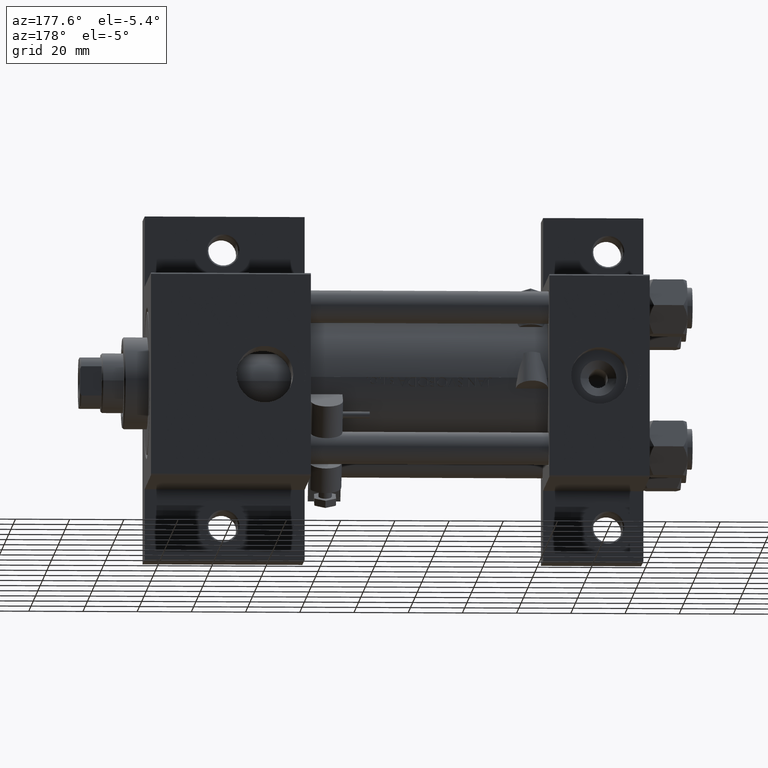
[diagram: clean part render]
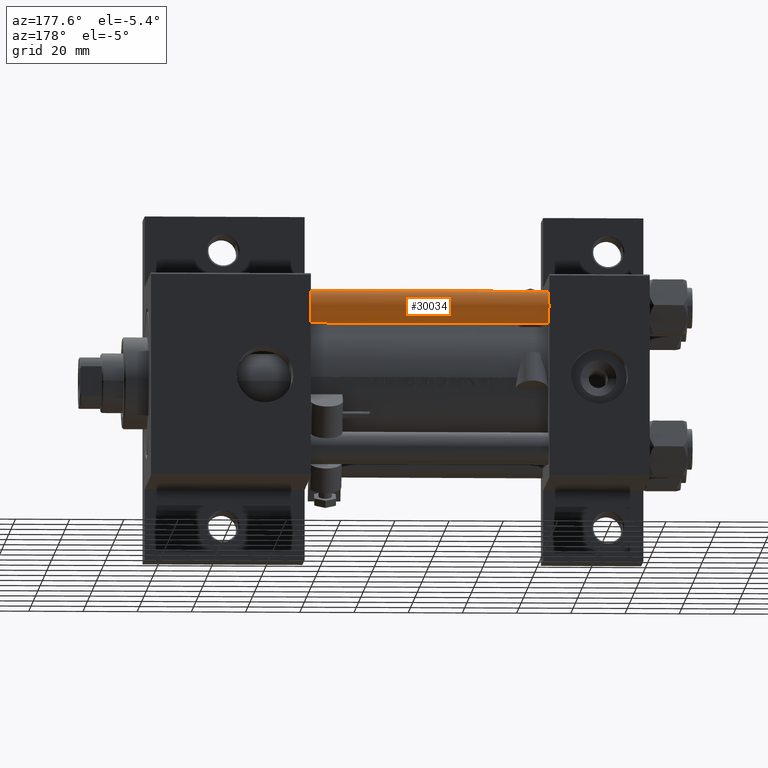
[diagram: same view with one face highlighted and labeled with its STEP entity id]
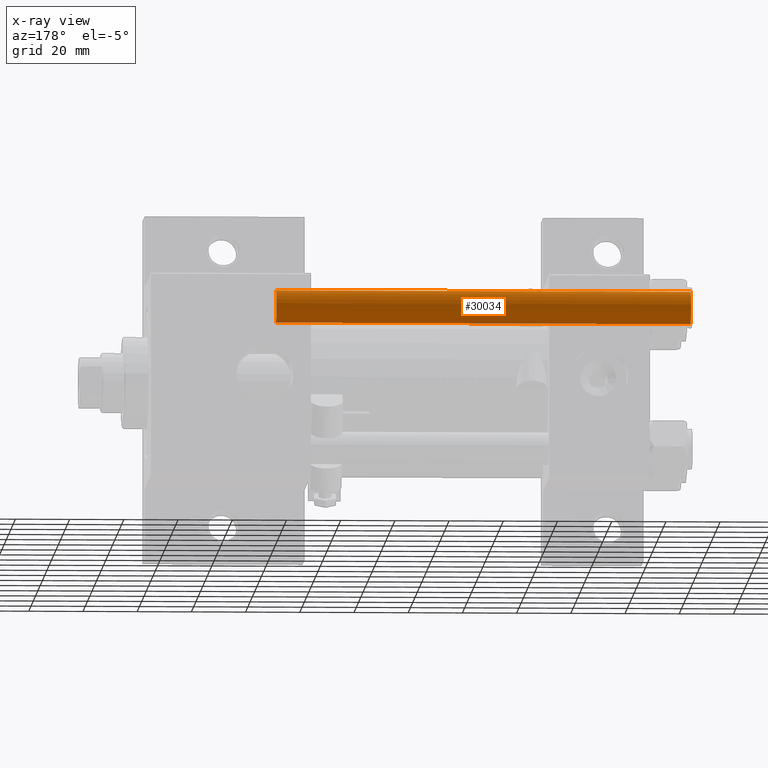
[diagram: x-ray of the same camera — body ghosted, the highlighted face saturated]
A machine part, auxiliary view. The second image highlights one B-rep face of the part: STEP entity #30034.
The next image is the same camera in x-ray: the body ghosted, the highlighted face saturated — about 0% of this face is hidden behind the body in this view.
In plain terms, the highlighted cylindrical surface (edge-blend (fillet) strip) has radius 6 mm, axis along (-1, -0, -0).
Its self-contained STEP definition (entity closure, byte-faithful):
#1549 = CARTESIAN_POINT ( 'NONE',  ( 6.000000000000000888, 7.347880794884120722E-16, 0.5000000000000281997 ) ) ;
#1821 = AXIS2_PLACEMENT_3D ( 'NONE', #35722, #42867, #27848 ) ;
#4988 = EDGE_CURVE ( 'NONE', #10348, #10608, #6570, .T. ) ;
#6183 = CYLINDRICAL_SURFACE ( 'NONE', #1821, 6.000000000000000888 ) ;
#6570 = LINE ( 'NONE', #13213, #26074 ) ;
#6851 = AXIS2_PLACEMENT_3D ( 'NONE', #23724, #23481, #34797 ) ;
#7455 = VERTEX_POINT ( 'NONE', #27057 ) ;
#9123 = DIRECTION ( 'NONE',  ( 1.000000000000000000, 0.000000000000000000, 0.000000000000000000 ) ) ;
#9129 = CARTESIAN_POINT ( 'NONE',  ( -6.000000000000000888, 0.000000000000000000, 153.5000000000000000 ) ) ;
#9583 = EDGE_CURVE ( 'NONE', #30814, #10608, #48214, .T. ) ;
#10348 = VERTEX_POINT ( 'NONE', #9129 ) ;
#10558 = ORIENTED_EDGE ( 'NONE', *, *, #44483, .T. ) ;
#10608 = VERTEX_POINT ( 'NONE', #23806 ) ;
#12800 = DIRECTION ( 'NONE',  ( -0.000000000000000000, -0.000000000000000000, 1.000000000000000000 ) ) ;
#13213 = CARTESIAN_POINT ( 'NONE',  ( -6.000000000000000888, 0.000000000000000000, 154.0000000000000000 ) ) ;
#16626 = ORIENTED_EDGE ( 'NONE', *, *, #4988, .F. ) ;
#19166 = VECTOR ( 'NONE', #38638, 1000.000000000000000 ) ;
#19207 = LINE ( 'NONE', #42094, #19166 ) ;
#21609 = ORIENTED_EDGE ( 'NONE', *, *, #33993, .T. ) ;
#23310 = EDGE_LOOP ( 'NONE', ( #10558, #21609, #36320, #16626 ) ) ;
#23481 = DIRECTION ( 'NONE',  ( 0.000000000000000000, 0.000000000000000000, -1.000000000000000000 ) ) ;
#23724 = CARTESIAN_POINT ( 'NONE',  ( 0.000000000000000000, 0.000000000000000000, 153.5000000000000000 ) ) ;
#23806 = CARTESIAN_POINT ( 'NONE',  ( -6.000000000000000888, 0.000000000000000000, 0.5000000000000281997 ) ) ;
#26074 = VECTOR ( 'NONE', #35863, 1000.000000000000000 ) ;
#27057 = CARTESIAN_POINT ( 'NONE',  ( 6.000000000000000888, 7.347880794884120722E-16, 153.5000000000000000 ) ) ;
#27848 = DIRECTION ( 'NONE',  ( -1.000000000000000000, 0.000000000000000000, 0.000000000000000000 ) ) ;
#30034 = ADVANCED_FACE ( 'NONE', ( #42620 ), #6183, .T. ) ;
#30814 = VERTEX_POINT ( 'NONE', #1549 ) ;
#31771 = AXIS2_PLACEMENT_3D ( 'NONE', #38902, #12800, #9123 ) ;
#33993 = EDGE_CURVE ( 'NONE', #7455, #30814, #19207, .T. ) ;
#34797 = DIRECTION ( 'NONE',  ( 1.000000000000000000, 0.000000000000000000, 0.000000000000000000 ) ) ;
#35722 = CARTESIAN_POINT ( 'NONE',  ( 0.000000000000000000, 0.000000000000000000, 154.0000000000000000 ) ) ;
#35863 = DIRECTION ( 'NONE',  ( -0.000000000000000000, -0.000000000000000000, -1.000000000000000000 ) ) ;
#36320 = ORIENTED_EDGE ( 'NONE', *, *, #9583, .T. ) ;
#38287 = CIRCLE ( 'NONE', #6851, 6.000000000000000888 ) ;
#38638 = DIRECTION ( 'NONE',  ( -0.000000000000000000, -0.000000000000000000, -1.000000000000000000 ) ) ;
#38902 = CARTESIAN_POINT ( 'NONE',  ( 0.000000000000000000, 0.000000000000000000, 0.5000000000000281997 ) ) ;
#42094 = CARTESIAN_POINT ( 'NONE',  ( 6.000000000000000888, 7.347880794884120722E-16, 154.0000000000000000 ) ) ;
#42620 = FACE_OUTER_BOUND ( 'NONE', #23310, .T. ) ;
#42867 = DIRECTION ( 'NONE',  ( -0.000000000000000000, -0.000000000000000000, -1.000000000000000000 ) ) ;
#44483 = EDGE_CURVE ( 'NONE', #10348, #7455, #38287, .T. ) ;
#48214 = CIRCLE ( 'NONE', #31771, 6.000000000000000888 ) ;